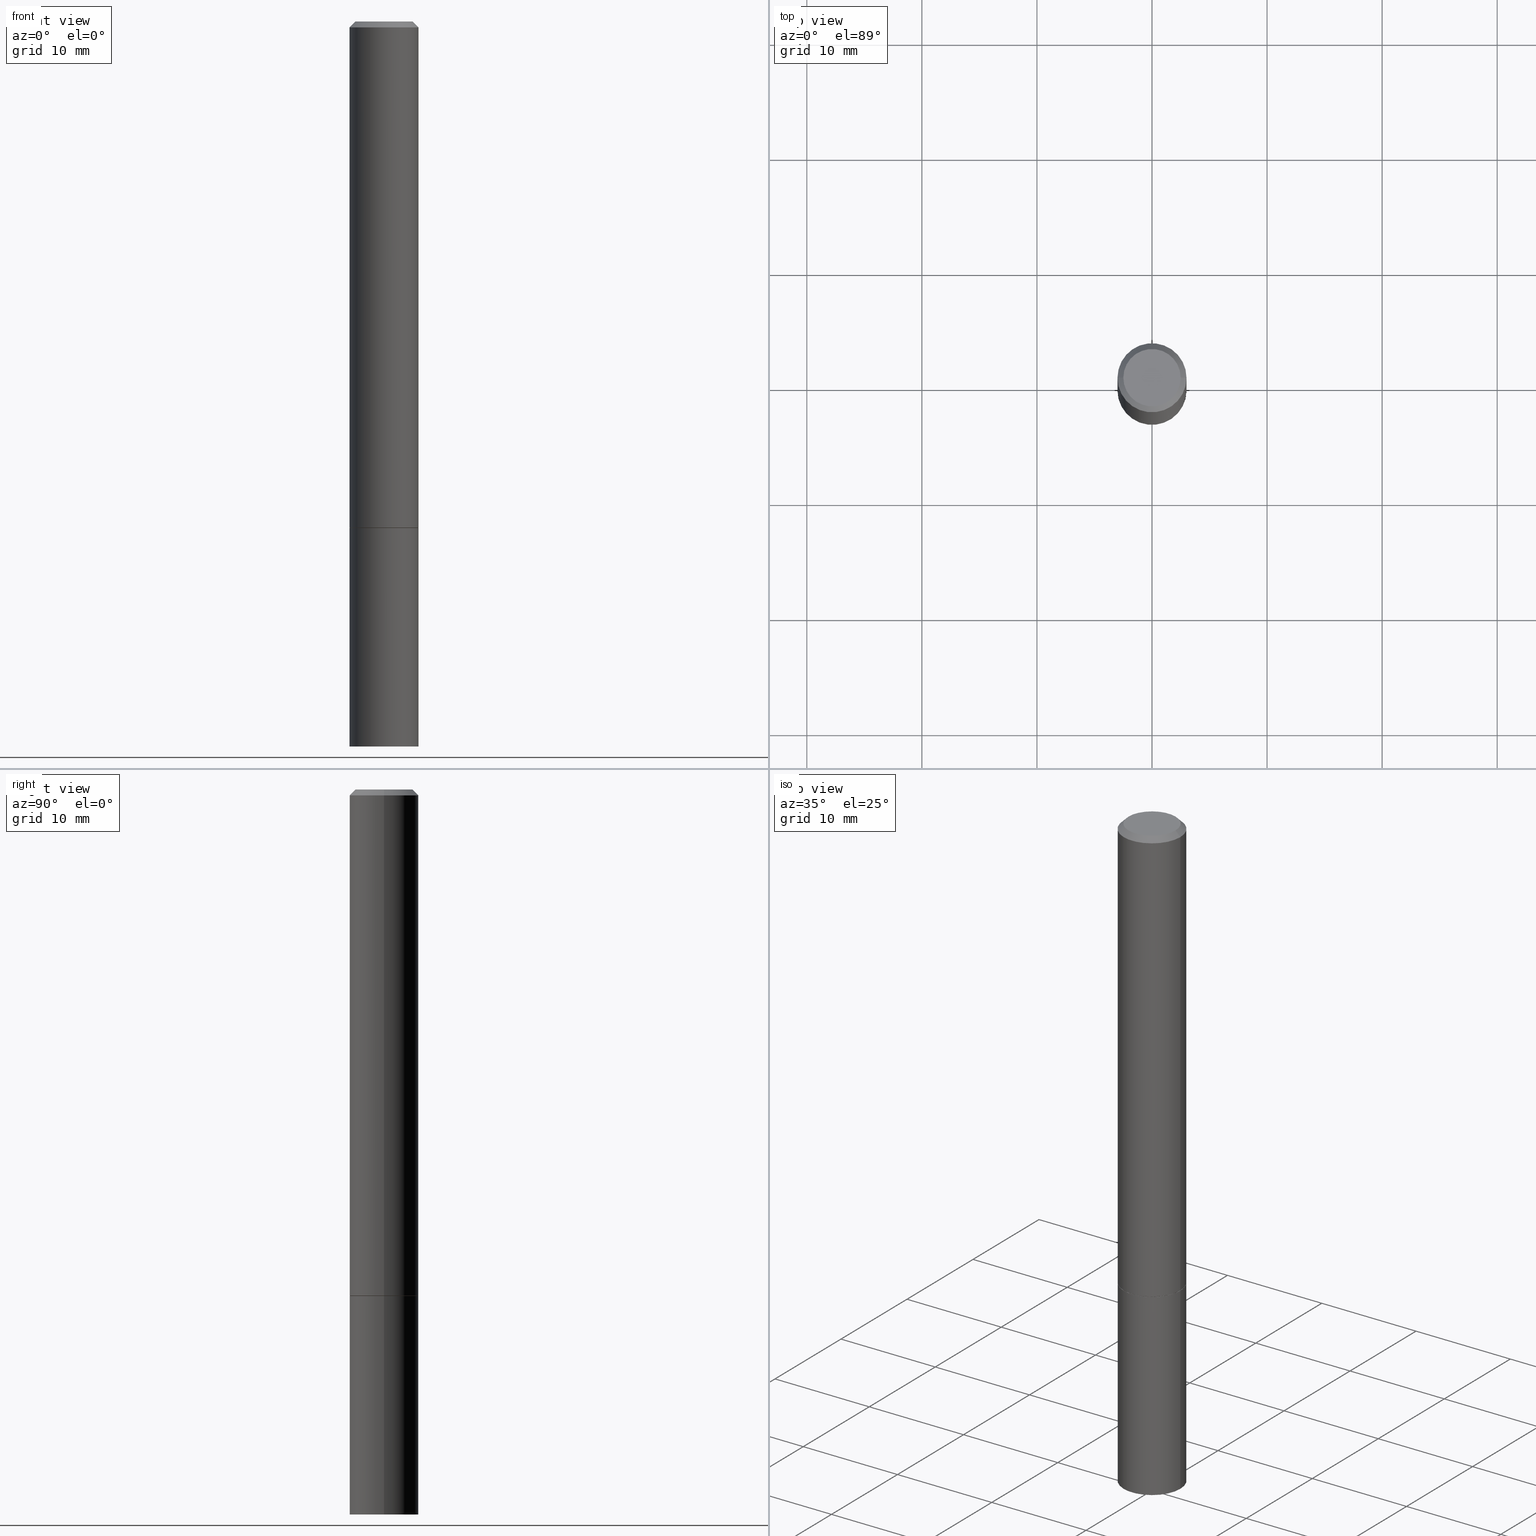
[diagram: canonical four-view strip — front | top / right | iso, engineering-drawing reading convention]
A machine part, canonical four-view strip (front | top / right | iso — engineering-drawing reading convention). The complete STEP part file that produces these views, byte-faithful:
ISO-10303-21;
HEADER;
FILE_DESCRIPTION (( 'STEP AP203' ),
    '1' );
FILE_NAME ('46620.STEP',
    '2024-02-28T10:54:08',
    ( '' ),
    ( '' ),
    'SwSTEP 2.0',
    'SolidWorks 2023',
    '' );
FILE_SCHEMA (( 'CONFIG_CONTROL_DESIGN' ));
ENDSEC;

DATA;
#1 = CC_DESIGN_PERSON_AND_ORGANIZATION_ASSIGNMENT ( #180, #151, ( #258 ) ) ;
#2 = DIRECTION ( 'NONE',  ( 1.000000000000000000, -6.982962677686266711E-15, 4.877161320636775200E-29 ) ) ;
#3 = CIRCLE ( 'NONE', #201, 0.1181000000000000383 ) ;
#4 = CIRCLE ( 'NONE', #222, 0.1181000000000000383 ) ;
#5 = FACE_OUTER_BOUND ( 'NONE', #329, .T. ) ;
#6 = CARTESIAN_POINT ( 'NONE',  ( 0.000000000000000000, 0.000000000000000000, 0.000000000000000000 ) ) ;
#7 = EDGE_CURVE ( 'NONE', #158, #191, #230, .T. ) ;
#8 = CARTESIAN_POINT ( 'NONE',  ( 6.850286386810215676E-16, 0.09809999999999984011, -3.659911380360642646E-16 ) ) ;
#9 = ORIENTED_EDGE ( 'NONE', *, *, #262, .F. ) ;
#10 = AXIS2_PLACEMENT_3D ( 'NONE', #283, #130, #218 ) ;
#11 = FACE_OUTER_BOUND ( 'NONE', #227, .T. ) ;
#12 = AXIS2_PLACEMENT_3D ( 'NONE', #164, #287, #60 ) ;
#13 = VERTEX_POINT ( 'NONE', #251 ) ;
#14 = CARTESIAN_POINT ( 'NONE',  ( -0.1171000000000000235, -5.216247579702905467E-15, -1.732300000000000173 ) ) ;
#15 = DIRECTION ( 'NONE',  ( -2.445468806185136597E-29, 3.491481338843145583E-15, 1.000000000000000000 ) ) ;
#16 =( CONVERSION_BASED_UNIT ( 'INCH', #296 ) LENGTH_UNIT ( ) NAMED_UNIT ( #81 ) );
#17 = AXIS2_PLACEMENT_3D ( 'NONE', #261, #196, #220 ) ;
#18 = CARTESIAN_POINT ( 'NONE',  ( -0.1171000000000000235, -5.210949125354683065E-15, -1.732300000000000173 ) ) ;
#19 = LINE ( 'NONE', #335, #278 ) ;
#20 = APPLICATION_CONTEXT ( 'configuration controlled 3d designs of mechanical parts and assemblies' ) ;
#21 = APPROVAL_DATE_TIME ( #77, #234 ) ;
#22 = FACE_OUTER_BOUND ( 'NONE', #240, .T. ) ;
#23 = AXIS2_PLACEMENT_3D ( 'NONE', #342, #344, #2 ) ;
#24 = PERSON_AND_ORGANIZATION_ROLE ( 'design_owner' ) ;
#25 = VERTEX_POINT ( 'NONE', #277 ) ;
#26 = DATE_AND_TIME ( #301, #273 ) ;
#27 = DIRECTION ( 'NONE',  ( -2.445468806185136877E-29, 3.491481338843145188E-15, 1.000000000000000000 ) ) ;
#28 = ORIENTED_EDGE ( 'NONE', *, *, #224, .T. ) ;
#29 = EDGE_CURVE ( 'NONE', #260, #25, #331, .T. ) ;
#30 = LOCAL_TIME ( 5, 54, 8.000000000000000000, #98 ) ;
#31 = FACE_OUTER_BOUND ( 'NONE', #317, .T. ) ;
#32 = DIRECTION ( 'NONE',  ( -2.445468806185136597E-29, 3.491481338843145583E-15, 1.000000000000000000 ) ) ;
#33 = FACE_OUTER_BOUND ( 'NONE', #65, .T. ) ;
#34 = AXIS2_PLACEMENT_3D ( 'NONE', #223, #316, #189 ) ;
#35 = LOCAL_TIME ( 5, 54, 8.000000000000000000, #242 ) ;
#36 = FACE_OUTER_BOUND ( 'NONE', #184, .T. ) ;
#37 = CARTESIAN_POINT ( 'NONE',  ( 4.890937612370292426E-31, -6.982962677686317493E-17, -0.02000000000000007674 ) ) ;
#38 = ORIENTED_EDGE ( 'NONE', *, *, #275, .F. ) ;
#39 = CARTESIAN_POINT ( 'NONE',  ( 4.233840144148327350E-29, -6.044801641939138860E-15, -1.731300000000000283 ) ) ;
#40 = VECTOR ( 'NONE', #292, 39.37007874015748143 ) ;
#41 = CC_DESIGN_APPROVAL ( #162, ( #266 ) ) ;
#42 =( NAMED_UNIT ( * ) SI_UNIT ( $, .STERADIAN. ) SOLID_ANGLE_UNIT ( ) );
#43 = EDGE_LOOP ( 'NONE', ( #350, #107 ) ) ;
#44 = DIRECTION ( 'NONE',  ( 1.000000000000000000, -6.982962677686262766E-15, 0.000000000000000000 ) ) ;
#45 = CARTESIAN_POINT ( 'NONE',  ( 0.09809999999999984011, -7.765346469475330681E-16, -4.695363739109941188E-17 ) ) ;
#46 = DATE_TIME_ROLE ( 'creation_date' ) ;
#47 = ORIENTED_EDGE ( 'NONE', *, *, #29, .F. ) ;
#48 = PERSON_AND_ORGANIZATION ( #228, #357 ) ;
#49 = ORIENTED_EDGE ( 'NONE', *, *, #146, .T. ) ;
#50 = DATE_AND_TIME ( #132, #30 ) ;
#51 = ORIENTED_EDGE ( 'NONE', *, *, #271, .F. ) ;
#52 = PERSON_AND_ORGANIZATION_ROLE ( 'creator' ) ;
#53 = ORIENTED_EDGE ( 'NONE', *, *, #7, .T. ) ;
#54 = ADVANCED_FACE ( 'NONE', ( #22 ), #337, .F. ) ;
#55 = DIRECTION ( 'NONE',  ( 2.438088387897960049E-29, -3.491481338843145188E-15, -1.000000000000000000 ) ) ;
#56 = VECTOR ( 'NONE', #27, 39.37007874015748143 ) ;
#57 = CONICAL_SURFACE ( 'NONE', #12, 0.1180999999999998301, 0.7853981633974473908 ) ;
#58 = CYLINDRICAL_SURFACE ( 'NONE', #166, 0.1180999999999999273 ) ;
#59 = DIRECTION ( 'NONE',  ( 2.438088387897960049E-29, -3.491481338843145188E-15, -1.000000000000000000 ) ) ;
#60 = DIRECTION ( 'NONE',  ( -1.000000000000000000, 6.982962677686266711E-15, 0.000000000000000000 ) ) ;
#61 = AXIS2_PLACEMENT_3D ( 'NONE', #341, #193, #136 ) ;
#62 = AXIS2_PLACEMENT_3D ( 'NONE', #205, #15, #44 ) ;
#63 = DIRECTION ( 'NONE',  ( -2.445468806185136877E-29, 3.491481338843145188E-15, 1.000000000000000000 ) ) ;
#64 = FACE_OUTER_BOUND ( 'NONE', #128, .T. ) ;
#65 = EDGE_LOOP ( 'NONE', ( #47, #284, #71, #123 ) ) ;
#66 = CARTESIAN_POINT ( 'NONE',  ( 0.000000000000000000, 0.000000000000000000, 0.000000000000000000 ) ) ;
#67 = AXIS2_PLACEMENT_3D ( 'NONE', #274, #102, #127 ) ;
#68 = DIRECTION ( 'NONE',  ( 1.000000000000000000, -6.982962677686262766E-15, 0.000000000000000000 ) ) ;
#69 = COORDINATED_UNIVERSAL_TIME_OFFSET ( 5, 0, .BEHIND. ) ;
#70 = APPROVAL_ROLE ( '' ) ;
#71 = ORIENTED_EDGE ( 'NONE', *, *, #178, .T. ) ;
#72 = EDGE_CURVE ( 'NONE', #265, #76, #96, .T. ) ;
#73 = APPROVAL_ROLE ( '' ) ;
#74 = ORIENTED_EDGE ( 'NONE', *, *, #224, .F. ) ;
#75 = PERSON_AND_ORGANIZATION ( #228, #357 ) ;
#76 = VERTEX_POINT ( 'NONE', #303 ) ;
#77 = DATE_AND_TIME ( #129, #231 ) ;
#78 = ORIENTED_EDGE ( 'NONE', *, *, #7, .F. ) ;
#79 = EDGE_CURVE ( 'NONE', #76, #200, #19, .T. ) ;
#80 = ORIENTED_EDGE ( 'NONE', *, *, #293, .T. ) ;
#81 = DIMENSIONAL_EXPONENTS ( 1.000000000000000000, 0.000000000000000000, 0.000000000000000000, 0.000000000000000000, 0.000000000000000000, 0.000000000000000000, 0.000000000000000000 ) ;
#82 = LINE ( 'NONE', #186, #92 ) ;
#83 = CARTESIAN_POINT ( 'NONE',  ( 0.1181000000000000383, -6.872981015512730918E-15, -1.732300000000000173 ) ) ;
#84 = CYLINDRICAL_SURFACE ( 'NONE', #17, 0.1180999999999999273 ) ;
#85 = CARTESIAN_POINT ( 'NONE',  ( 4.236285612954512953E-29, -6.048293123277982656E-15, -1.732300000000000173 ) ) ;
#86 = ORIENTED_EDGE ( 'NONE', *, *, #271, .T. ) ;
#87 = EDGE_CURVE ( 'NONE', #306, #302, #359, .T. ) ;
#88 = CARTESIAN_POINT ( 'NONE',  ( 6.065496279980994755E-29, -8.659921164732655335E-15, -2.480300000000000171 ) ) ;
#89 = EDGE_LOOP ( 'NONE', ( #208, #308, #51, #139 ) ) ;
#90 =( LENGTH_UNIT ( ) NAMED_UNIT ( * ) SI_UNIT ( $, .METRE. ) );
#91 = AXIS2_PLACEMENT_3D ( 'NONE', #85, #161, #219 ) ;
#92 = VECTOR ( 'NONE', #63, 39.37007874015748143 ) ;
#93 = EDGE_CURVE ( 'NONE', #365, #306, #241, .T. ) ;
#94 = DIRECTION ( 'NONE',  ( -2.445468806185136597E-29, 3.491481338843145583E-15, 1.000000000000000000 ) ) ;
#95 = DATE_AND_TIME ( #106, #352 ) ;
#96 = CIRCLE ( 'NONE', #310, 0.1171000000000000235 ) ;
#97 = DIRECTION ( 'NONE',  ( 0.7071067811865232589, -2.468850131082003836E-15, 0.7071067811865715536 ) ) ;
#98 = COORDINATED_UNIVERSAL_TIME_OFFSET ( 5, 0, .BEHIND. ) ;
#99 = ORIENTED_EDGE ( 'NONE', *, *, #314, .T. ) ;
#100 = PERSON_AND_ORGANIZATION_ROLE ( 'creator' ) ;
#101 = ORIENTED_EDGE ( 'NONE', *, *, #178, .F. ) ;
#102 = DIRECTION ( 'NONE',  ( 0.000000000000000000, 0.000000000000000000, 1.000000000000000000 ) ) ;
#103 = ORIENTED_EDGE ( 'NONE', *, *, #72, .F. ) ;
#104 = VECTOR ( 'NONE', #259, 39.37007874015748143 ) ;
#105 = VECTOR ( 'NONE', #147, 39.37007874015748143 ) ;
#106 = CALENDAR_DATE ( 2024, 28, 2 ) ;
#107 = ORIENTED_EDGE ( 'NONE', *, *, #113, .T. ) ;
#108 = CARTESIAN_POINT ( 'NONE',  ( 6.065496279980994755E-29, -8.659921164732655335E-15, -2.480300000000000171 ) ) ;
#109 = DIRECTION ( 'NONE',  ( -2.445468806185136597E-29, 3.491481338843145583E-15, 1.000000000000000000 ) ) ;
#110 = PRODUCT ( '46620', '46620', '', ( #207 ) ) ;
#111 = CARTESIAN_POINT ( 'NONE',  ( 4.236285612954512953E-29, -6.048293123277982656E-15, -1.732300000000000173 ) ) ;
#112 = DIRECTION ( 'NONE',  ( -2.445468806185136597E-29, 3.491481338843145583E-15, 1.000000000000000000 ) ) ;
#113 = EDGE_CURVE ( 'NONE', #306, #365, #119, .T. ) ;
#114 = PLANE ( 'NONE',  #214 ) ;
#115 = CC_DESIGN_PERSON_AND_ORGANIZATION_ASSIGNMENT ( #305, #334, ( #319 ) ) ;
#116 = DIRECTION ( 'NONE',  ( 1.000000000000000000, -6.982962677686266711E-15, 4.876176775795935793E-29 ) ) ;
#117 = DIRECTION ( 'NONE',  ( 1.000000000000000000, -6.982962677686262766E-15, 0.000000000000000000 ) ) ;
#118 = DIRECTION ( 'NONE',  ( -2.445468806185136597E-29, 3.491481338843145583E-15, 1.000000000000000000 ) ) ;
#119 = CIRCLE ( 'NONE', #23, 0.09809999999999984011 ) ;
#120 =( GEOMETRIC_REPRESENTATION_CONTEXT ( 3 ) GLOBAL_UNCERTAINTY_ASSIGNED_CONTEXT ( ( #313 ) ) GLOBAL_UNIT_ASSIGNED_CONTEXT ( ( #16, #197, #42 ) ) REPRESENTATION_CONTEXT ( 'NONE', 'WORKASPACE' ) );
#121 = DIRECTION ( 'NONE',  ( -0.7071067811865469066, 2.468850131082249961E-15, -0.7071067811865482389 ) ) ;
#122 = SECURITY_CLASSIFICATION_LEVEL ( 'unclassified' ) ;
#123 = ORIENTED_EDGE ( 'NONE', *, *, #168, .F. ) ;
#124 = CC_DESIGN_DATE_AND_TIME_ASSIGNMENT ( #95, #358, ( #319 ) ) ;
#125 = CIRCLE ( 'NONE', #91, 0.1181000000000000383 ) ;
#126 = ORIENTED_EDGE ( 'NONE', *, *, #29, .T. ) ;
#127 = DIRECTION ( 'NONE',  ( 1.000000000000000000, 0.000000000000000000, 0.000000000000000000 ) ) ;
#128 = EDGE_LOOP ( 'NONE', ( #133, #361 ) ) ;
#129 = CALENDAR_DATE ( 2024, 28, 2 ) ;
#130 = DIRECTION ( 'NONE',  ( -2.445468806185136597E-29, 3.491481338843145583E-15, 1.000000000000000000 ) ) ;
#131 = EDGE_CURVE ( 'NONE', #13, #159, #221, .T. ) ;
#132 = CALENDAR_DATE ( 2024, 28, 2 ) ;
#133 = ORIENTED_EDGE ( 'NONE', *, *, #131, .F. ) ;
#134 = DIRECTION ( 'NONE',  ( -1.000000000000000000, 6.982962677686266711E-15, 0.000000000000000000 ) ) ;
#135 = DIRECTION ( 'NONE',  ( -2.445468806185136597E-29, 3.491481338843145583E-15, 1.000000000000000000 ) ) ;
#136 = DIRECTION ( 'NONE',  ( 1.000000000000000000, -6.982962677686266711E-15, 0.000000000000000000 ) ) ;
#137 = AXIS2_PLACEMENT_3D ( 'NONE', #298, #238, #172 ) ;
#138 = CYLINDRICAL_SURFACE ( 'NONE', #340, 0.1181000000000000383 ) ;
#139 = ORIENTED_EDGE ( 'NONE', *, *, #79, .F. ) ;
#140 = DIRECTION ( 'NONE',  ( -2.445468806185136597E-29, 3.491481338843145583E-15, 1.000000000000000000 ) ) ;
#141 = ADVANCED_BREP_SHAPE_REPRESENTATION ( '46620', ( #272, #145, #67 ), #120 ) ;
#142 = CARTESIAN_POINT ( 'NONE',  ( 0.1181000000000000383, -8.246878922347483612E-16, 5.758764772215001842E-30 ) ) ;
#143 = AXIS2_PLACEMENT_3D ( 'NONE', #169, #294, #117 ) ;
#144 = DIRECTION ( 'NONE',  ( 2.438088387897960049E-29, -3.491481338843145188E-15, -1.000000000000000000 ) ) ;
#145 = MANIFOLD_SOLID_BREP ( 'Body-Move/Copy2[2]', #351 ) ;
#146 = EDGE_CURVE ( 'NONE', #159, #13, #3, .T. ) ;
#147 = DIRECTION ( 'NONE',  ( -2.445468806185136877E-29, 3.491481338843145188E-15, 1.000000000000000000 ) ) ;
#148 = CC_DESIGN_APPROVAL ( #234, ( #319 ) ) ;
#149 = APPLICATION_PROTOCOL_DEFINITION ( 'international standard', 'config_control_design', 1994, #20 ) ;
#150 = EDGE_CURVE ( 'NONE', #302, #25, #179, .T. ) ;
#151 = PERSON_AND_ORGANIZATION_ROLE ( 'design_supplier' ) ;
#152 = ORIENTED_EDGE ( 'NONE', *, *, #113, .F. ) ;
#153 = CALENDAR_DATE ( 2024, 28, 2 ) ;
#154 = AXIS2_PLACEMENT_3D ( 'NONE', #108, #135, #254 ) ;
#155 = EDGE_LOOP ( 'NONE', ( #346, #103 ) ) ;
#156 = PERSON_AND_ORGANIZATION ( #228, #357 ) ;
#157 = ADVANCED_FACE ( 'NONE', ( #33 ), #84, .T. ) ;
#158 = VERTEX_POINT ( 'NONE', #286 ) ;
#159 = VERTEX_POINT ( 'NONE', #321 ) ;
#160 = FACE_OUTER_BOUND ( 'NONE', #43, .T. ) ;
#161 = DIRECTION ( 'NONE',  ( -2.445468806185136597E-29, 3.491481338843145583E-15, 1.000000000000000000 ) ) ;
#162 = APPROVAL ( #330, 'UNSPECIFIED' ) ;
#163 = DIRECTION ( 'NONE',  ( 1.000000000000000000, -6.982962677686266711E-15, 4.877161320636775200E-29 ) ) ;
#164 = CARTESIAN_POINT ( 'NONE',  ( 4.890937612370292426E-31, -6.982962677686317493E-17, -0.02000000000000007674 ) ) ;
#165 = CIRCLE ( 'NONE', #61, 0.1180999999999998301 ) ;
#166 = AXIS2_PLACEMENT_3D ( 'NONE', #225, #290, #318 ) ;
#167 = DIRECTION ( 'NONE',  ( 1.000000000000000000, -6.982962677686266711E-15, 4.876176775795935793E-29 ) ) ;
#168 = EDGE_CURVE ( 'NONE', #25, #302, #165, .T. ) ;
#169 = CARTESIAN_POINT ( 'NONE',  ( 4.236285612954512953E-29, -6.048293123277982656E-15, -1.732300000000000173 ) ) ;
#170 = CC_DESIGN_PERSON_AND_ORGANIZATION_ASSIGNMENT ( #328, #24, ( #110 ) ) ;
#171 = PLANE ( 'NONE',  #137 ) ;
#172 = DIRECTION ( 'NONE',  ( 1.000000000000000000, -6.982962677686265922E-15, 4.876176775795935793E-29 ) ) ;
#173 = ADVANCED_FACE ( 'NONE', ( #160 ), #114, .F. ) ;
#174 = APPROVAL_PERSON_ORGANIZATION ( #48, #239, #73 ) ;
#175 = COORDINATED_UNIVERSAL_TIME_OFFSET ( 5, 0, .BEHIND. ) ;
#176 = ORIENTED_EDGE ( 'NONE', *, *, #314, .F. ) ;
#177 = DIRECTION ( 'NONE',  ( 1.000000000000000000, -6.982962677686262766E-15, 0.000000000000000000 ) ) ;
#178 = EDGE_CURVE ( 'NONE', #200, #302, #253, .T. ) ;
#179 = CIRCLE ( 'NONE', #34, 0.1180999999999998301 ) ;
#180 = PERSON_AND_ORGANIZATION ( #228, #357 ) ;
#181 = AXIS2_PLACEMENT_3D ( 'NONE', #66, #94, #116 ) ;
#182 = ORIENTED_EDGE ( 'NONE', *, *, #150, .T. ) ;
#183 = APPROVAL_DATE_TIME ( #26, #162 ) ;
#184 = EDGE_LOOP ( 'NONE', ( #74, #49, #80, #78 ) ) ;
#185 = CARTESIAN_POINT ( 'NONE',  ( 8.246878922347905653E-16, 0.1180999999999939876, -1.732300000000000839 ) ) ;
#186 = CARTESIAN_POINT ( 'NONE',  ( -0.1181000000000000383, 8.391509709326785915E-16, -5.809262341591045886E-30 ) ) ;
#187 = AXIS2_PLACEMENT_3D ( 'NONE', #353, #144, #232 ) ;
#188 = CC_DESIGN_DATE_AND_TIME_ASSIGNMENT ( #50, #46, ( #266 ) ) ;
#189 = DIRECTION ( 'NONE',  ( 1.000000000000000000, -6.982962677686266711E-15, 0.000000000000000000 ) ) ;
#190 = FACE_OUTER_BOUND ( 'NONE', #281, .T. ) ;
#191 = VERTEX_POINT ( 'NONE', #83 ) ;
#192 = ADVANCED_FACE ( 'NONE', ( #31 ), #300, .T. ) ;
#193 = DIRECTION ( 'NONE',  ( -2.445468806185136597E-29, 3.491481338843145583E-15, 1.000000000000000000 ) ) ;
#194 = CC_DESIGN_APPROVAL ( #239, ( #258 ) ) ;
#195 = EDGE_LOOP ( 'NONE', ( #86, #126, #291, #101 ) ) ;
#196 = DIRECTION ( 'NONE',  ( -2.445468806185136597E-29, 3.491481338843145583E-15, 1.000000000000000000 ) ) ;
#197 =( NAMED_UNIT ( * ) PLANE_ANGLE_UNIT ( ) SI_UNIT ( $, .RADIAN. ) );
#198 = ADVANCED_FACE ( 'NONE', ( #366 ), #58, .T. ) ;
#199 = DIRECTION ( 'NONE',  ( -0.7071067811865232589, 7.493145998870265808E-15, 0.7071067811865715536 ) ) ;
#200 = VERTEX_POINT ( 'NONE', #255 ) ;
#201 = AXIS2_PLACEMENT_3D ( 'NONE', #88, #109, #289 ) ;
#202 = CIRCLE ( 'NONE', #62, 0.1171000000000000235 ) ;
#203 = CARTESIAN_POINT ( 'NONE',  ( -0.1181000000000000383, -2.218164663425320121E-15, -1.731300000000000283 ) ) ;
#204 = EDGE_CURVE ( 'NONE', #191, #158, #125, .T. ) ;
#205 = CARTESIAN_POINT ( 'NONE',  ( 4.236285612954512953E-29, -6.048293123277982656E-15, -1.732300000000000173 ) ) ;
#206 = CIRCLE ( 'NONE', #264, 0.1181000000000000383 ) ;
#207 = MECHANICAL_CONTEXT ( 'NONE', #20, 'mechanical' ) ;
#208 = ORIENTED_EDGE ( 'NONE', *, *, #257, .T. ) ;
#209 = DATE_AND_TIME ( #153, #35 ) ;
#210 = CARTESIAN_POINT ( 'NONE',  ( 0.1180999999999998301, -8.800544403136798514E-16, -0.02000000000000007674 ) ) ;
#211 = ADVANCED_FACE ( 'NONE', ( #5 ), #311, .T. ) ;
#212 = APPROVAL_DATE_TIME ( #209, #239 ) ;
#213 = ORIENTED_EDGE ( 'NONE', *, *, #93, .F. ) ;
#214 = AXIS2_PLACEMENT_3D ( 'NONE', #8, #59, #229 ) ;
#215 = VECTOR ( 'NONE', #199, 39.37007874015748854 ) ;
#216 = ORIENTED_EDGE ( 'NONE', *, *, #204, .F. ) ;
#217 = ADVANCED_FACE ( 'NONE', ( #190 ), #57, .T. ) ;
#218 = DIRECTION ( 'NONE',  ( 1.000000000000000000, -6.982962677686270655E-15, 0.000000000000000000 ) ) ;
#219 = DIRECTION ( 'NONE',  ( 1.000000000000000000, -6.982962677686270655E-15, 0.000000000000000000 ) ) ;
#220 = DIRECTION ( 'NONE',  ( 1.000000000000000000, -6.982962677686266711E-15, 4.876176775795935793E-29 ) ) ;
#221 = CIRCLE ( 'NONE', #154, 0.1181000000000000383 ) ;
#222 = AXIS2_PLACEMENT_3D ( 'NONE', #263, #237, #355 ) ;
#223 = CARTESIAN_POINT ( 'NONE',  ( 4.890937612370292426E-31, -6.982962677686317493E-17, -0.02000000000000007674 ) ) ;
#224 = EDGE_CURVE ( 'NONE', #159, #158, #82, .T. ) ;
#225 = CARTESIAN_POINT ( 'NONE',  ( 0.000000000000000000, 0.000000000000000000, 0.000000000000000000 ) ) ;
#226 = PRODUCT_DEFINITION_SHAPE ( 'NONE', 'NONE',  #266 ) ;
#227 = EDGE_LOOP ( 'NONE', ( #332, #28, #216, #297 ) ) ;
#228 = PERSON ( 'UNSPECIFIED', 'UNSPECIFIED', 'UNSPECIFIED', ('UNSPECIFIED'), ('UNSPECIFIED'), ('UNSPECIFIED') ) ;
#229 = DIRECTION ( 'NONE',  ( -1.000000000000000000, 6.982962677686265922E-15, -4.876176775795935793E-29 ) ) ;
#230 = CIRCLE ( 'NONE', #10, 0.1181000000000000383 ) ;
#231 = LOCAL_TIME ( 5, 54, 8.000000000000000000, #276 ) ;
#232 = DIRECTION ( 'NONE',  ( -1.000000000000000000, 6.982962677686265922E-15, -4.876176775795935793E-29 ) ) ;
#233 = CARTESIAN_POINT ( 'NONE',  ( 0.1180999999999998301, -8.800544403136798514E-16, -0.02000000000000007674 ) ) ;
#234 = APPROVAL ( #282, 'UNSPECIFIED' ) ;
#235 = CARTESIAN_POINT ( 'NONE',  ( -0.1180999999999998301, 7.548582654578836825E-16, -0.02000000000000007674 ) ) ;
#236 = APPROVAL_PERSON_ORGANIZATION ( #156, #234, #362 ) ;
#237 = DIRECTION ( 'NONE',  ( -2.445468806185136597E-29, 3.491481338843145583E-15, 1.000000000000000000 ) ) ;
#238 = DIRECTION ( 'NONE',  ( -2.438088387897960049E-29, 3.491481338843145188E-15, 1.000000000000000000 ) ) ;
#239 = APPROVAL ( #250, 'UNSPECIFIED' ) ;
#240 = EDGE_LOOP ( 'NONE', ( #246, #53 ) ) ;
#241 = CIRCLE ( 'NONE', #339, 0.09809999999999984011 ) ;
#242 = COORDINATED_UNIVERSAL_TIME_OFFSET ( 5, 0, .BEHIND. ) ;
#243 = ADVANCED_FACE ( 'NONE', ( #36 ), #138, .T. ) ;
#244 = CARTESIAN_POINT ( 'NONE',  ( 4.236285612954512953E-29, -6.048293123277982656E-15, -1.732300000000000173 ) ) ;
#245 = PERSON_AND_ORGANIZATION ( #228, #357 ) ;
#246 = ORIENTED_EDGE ( 'NONE', *, *, #204, .T. ) ;
#247 = SHAPE_DEFINITION_REPRESENTATION ( #226, #141 ) ;
#248 = DIRECTION ( 'NONE',  ( -1.000000000000000000, 6.982962677686265922E-15, -4.876176775795935793E-29 ) ) ;
#249 = APPLICATION_CONTEXT ( 'configuration controlled 3d designs of mechanical parts and assemblies' ) ;
#250 = APPROVAL_STATUS ( 'not_yet_approved' ) ;
#251 = CARTESIAN_POINT ( 'NONE',  ( 0.1181000000000000383, -9.484609056967403598E-15, -2.480300000000000171 ) ) ;
#252 = CC_DESIGN_PERSON_AND_ORGANIZATION_ASSIGNMENT ( #75, #52, ( #258 ) ) ;
#253 = LINE ( 'NONE', #315, #104 ) ;
#254 = DIRECTION ( 'NONE',  ( 1.000000000000000000, -6.982962677686270655E-15, 0.000000000000000000 ) ) ;
#255 = CARTESIAN_POINT ( 'NONE',  ( 0.1181000000000000383, -6.869489534173886334E-15, -1.731300000000000283 ) ) ;
#256 = APPROVAL_PERSON_ORGANIZATION ( #360, #162, #70 ) ;
#257 = EDGE_CURVE ( 'NONE', #76, #265, #202, .T. ) ;
#258 = PRODUCT_DEFINITION_FORMATION_WITH_SPECIFIED_SOURCE ( 'ANY', '', #110, .NOT_KNOWN. ) ;
#259 = DIRECTION ( 'NONE',  ( -2.445468806185136877E-29, 3.491481338843145188E-15, 1.000000000000000000 ) ) ;
#260 = VERTEX_POINT ( 'NONE', #203 ) ;
#261 = CARTESIAN_POINT ( 'NONE',  ( 0.000000000000000000, 0.000000000000000000, 0.000000000000000000 ) ) ;
#262 = EDGE_CURVE ( 'NONE', #265, #260, #325, .T. ) ;
#263 = CARTESIAN_POINT ( 'NONE',  ( 4.233840144148327350E-29, -6.044801641939138860E-15, -1.731300000000000283 ) ) ;
#264 = AXIS2_PLACEMENT_3D ( 'NONE', #39, #118, #68 ) ;
#265 = VERTEX_POINT ( 'NONE', #18 ) ;
#266 = PRODUCT_DEFINITION ( 'UNKNOWN', '', #258, #345 ) ;
#267 = FACE_OUTER_BOUND ( 'NONE', #155, .T. ) ;
#268 = CARTESIAN_POINT ( 'NONE',  ( -0.09809999999999984011, 7.199434520694526251E-16, -4.695363739110943904E-17 ) ) ;
#269 = ORIENTED_EDGE ( 'NONE', *, *, #79, .T. ) ;
#270 = PLANE ( 'NONE',  #187 ) ;
#271 = EDGE_CURVE ( 'NONE', #200, #260, #206, .T. ) ;
#272 = MANIFOLD_SOLID_BREP ( 'Body-Move/Copy2[1]', #326 ) ;
#273 = LOCAL_TIME ( 5, 54, 8.000000000000000000, #175 ) ;
#274 = CARTESIAN_POINT ( 'NONE',  ( 0.000000000000000000, 0.000000000000000000, 0.000000000000000000 ) ) ;
#275 = EDGE_CURVE ( 'NONE', #260, #200, #4, .T. ) ;
#276 = COORDINATED_UNIVERSAL_TIME_OFFSET ( 5, 0, .BEHIND. ) ;
#277 = CARTESIAN_POINT ( 'NONE',  ( -0.1180999999999998301, 7.548582654578836825E-16, -0.02000000000000007674 ) ) ;
#278 = VECTOR ( 'NONE', #97, 39.37007874015748854 ) ;
#279 = PRODUCT_RELATED_PRODUCT_CATEGORY ( 'detail', '', ( #110 ) ) ;
#280 = APPLICATION_PROTOCOL_DEFINITION ( 'international standard', 'config_control_design', 1994, #249 ) ;
#281 = EDGE_LOOP ( 'NONE', ( #152, #343, #182, #176 ) ) ;
#282 = APPROVAL_STATUS ( 'not_yet_approved' ) ;
#283 = CARTESIAN_POINT ( 'NONE',  ( 4.236285612954512953E-29, -6.048293123277982656E-15, -1.732300000000000173 ) ) ;
#284 = ORIENTED_EDGE ( 'NONE', *, *, #275, .T. ) ;
#285 = AXIS2_PLACEMENT_3D ( 'NONE', #185, #55, #248 ) ;
#286 = CARTESIAN_POINT ( 'NONE',  ( -0.1181000000000000383, -6.514956173072640404E-15, -1.732300000000000173 ) ) ;
#287 = DIRECTION ( 'NONE',  ( 2.445468806185136597E-29, -3.491481338843145583E-15, -1.000000000000000000 ) ) ;
#288 = ADVANCED_FACE ( 'NONE', ( #349 ), #348, .T. ) ;
#289 = DIRECTION ( 'NONE',  ( 1.000000000000000000, -6.982962677686270655E-15, 0.000000000000000000 ) ) ;
#290 = DIRECTION ( 'NONE',  ( -2.445468806185136597E-29, 3.491481338843145583E-15, 1.000000000000000000 ) ) ;
#291 = ORIENTED_EDGE ( 'NONE', *, *, #150, .F. ) ;
#292 = DIRECTION ( 'NONE',  ( 0.7071067811865469066, -7.319954787623254468E-15, -0.7071067811865482389 ) ) ;
#293 = EDGE_CURVE ( 'NONE', #13, #191, #299, .T. ) ;
#294 = DIRECTION ( 'NONE',  ( -2.445468806185136597E-29, 3.491481338843145583E-15, 1.000000000000000000 ) ) ;
#295 = CYLINDRICAL_SURFACE ( 'NONE', #181, 0.1181000000000000383 ) ;
#296 = LENGTH_MEASURE_WITH_UNIT ( LENGTH_MEASURE( 0.02539999999999999897 ), #90 );
#297 = ORIENTED_EDGE ( 'NONE', *, *, #293, .F. ) ;
#298 = CARTESIAN_POINT ( 'NONE',  ( 4.236285612954512953E-29, -6.048293123277982656E-15, -1.732300000000000173 ) ) ;
#299 = LINE ( 'NONE', #142, #105 ) ;
#300 = CONICAL_SURFACE ( 'NONE', #327, 0.1180999999999998301, 0.7853981633974473908 ) ;
#301 = CALENDAR_DATE ( 2024, 28, 2 ) ;
#302 = VERTEX_POINT ( 'NONE', #233 ) ;
#303 = CARTESIAN_POINT ( 'NONE',  ( 0.1171000000000000235, -6.865998052835044115E-15, -1.732300000000000173 ) ) ;
#304 = AXIS2_PLACEMENT_3D ( 'NONE', #111, #140, #338 ) ;
#305 = PERSON_AND_ORGANIZATION ( #228, #357 ) ;
#306 = VERTEX_POINT ( 'NONE', #45 ) ;
#307 = ORIENTED_EDGE ( 'NONE', *, *, #168, .T. ) ;
#308 = ORIENTED_EDGE ( 'NONE', *, *, #262, .T. ) ;
#309 = CC_DESIGN_PERSON_AND_ORGANIZATION_ASSIGNMENT ( #245, #100, ( #266 ) ) ;
#310 = AXIS2_PLACEMENT_3D ( 'NONE', #244, #363, #177 ) ;
#311 = CONICAL_SURFACE ( 'NONE', #304, 0.1171000000000000235, 0.7853981633974141952 ) ;
#312 = DIRECTION ( 'NONE',  ( 2.445468806185136597E-29, -3.491481338843145583E-15, -1.000000000000000000 ) ) ;
#313 = UNCERTAINTY_MEASURE_WITH_UNIT (LENGTH_MEASURE( 1.000000000000000082E-05 ), #16, 'distance_accuracy_value', 'NONE');
#314 = EDGE_CURVE ( 'NONE', #365, #25, #323, .T. ) ;
#315 = CARTESIAN_POINT ( 'NONE',  ( 0.1180999999999999273, -8.246878922347475723E-16, 5.758764772214996937E-30 ) ) ;
#316 = DIRECTION ( 'NONE',  ( -2.445468806185136597E-29, 3.491481338843145583E-15, 1.000000000000000000 ) ) ;
#317 = EDGE_LOOP ( 'NONE', ( #322, #213, #99, #307 ) ) ;
#318 = DIRECTION ( 'NONE',  ( 1.000000000000000000, -6.982962677686266711E-15, 4.876176775795935793E-29 ) ) ;
#319 = SECURITY_CLASSIFICATION ( '', '', #122 ) ;
#320 = ORIENTED_EDGE ( 'NONE', *, *, #72, .T. ) ;
#321 = CARTESIAN_POINT ( 'NONE',  ( -0.1181000000000000383, -6.514956173072640404E-15, -2.480300000000000171 ) ) ;
#322 = ORIENTED_EDGE ( 'NONE', *, *, #87, .F. ) ;
#323 = LINE ( 'NONE', #235, #324 ) ;
#324 = VECTOR ( 'NONE', #121, 39.37007874015748143 ) ;
#325 = LINE ( 'NONE', #14, #215 ) ;
#326 = CLOSED_SHELL ( 'NONE', ( #336, #354, #54, #243 ) ) ;
#327 = AXIS2_PLACEMENT_3D ( 'NONE', #37, #312, #134 ) ;
#328 = PERSON_AND_ORGANIZATION ( #228, #357 ) ;
#329 = EDGE_LOOP ( 'NONE', ( #9, #320, #269, #38 ) ) ;
#330 = APPROVAL_STATUS ( 'not_yet_approved' ) ;
#331 = LINE ( 'NONE', #356, #56 ) ;
#332 = ORIENTED_EDGE ( 'NONE', *, *, #131, .T. ) ;
#333 = ADVANCED_FACE ( 'NONE', ( #267 ), #171, .F. ) ;
#334 = PERSON_AND_ORGANIZATION_ROLE ( 'classification_officer' ) ;
#335 = CARTESIAN_POINT ( 'NONE',  ( 0.1171000000000000235, -6.865998052835044115E-15, -1.732300000000000173 ) ) ;
#336 = ADVANCED_FACE ( 'NONE', ( #11 ), #295, .T. ) ;
#337 = PLANE ( 'NONE',  #285 ) ;
#338 = DIRECTION ( 'NONE',  ( 1.000000000000000000, -6.982962677686262766E-15, 0.000000000000000000 ) ) ;
#339 = AXIS2_PLACEMENT_3D ( 'NONE', #347, #32, #163 ) ;
#340 = AXIS2_PLACEMENT_3D ( 'NONE', #6, #112, #167 ) ;
#341 = CARTESIAN_POINT ( 'NONE',  ( 4.890937612370292426E-31, -6.982962677686317493E-17, -0.02000000000000007674 ) ) ;
#342 = CARTESIAN_POINT ( 'NONE',  ( 1.148236555768741665E-45, -1.639377487418492057E-31, -4.695363739110452099E-17 ) ) ;
#343 = ORIENTED_EDGE ( 'NONE', *, *, #87, .T. ) ;
#344 = DIRECTION ( 'NONE',  ( -2.445468806185136597E-29, 3.491481338843145583E-15, 1.000000000000000000 ) ) ;
#345 = DESIGN_CONTEXT ( 'detailed design', #249, 'design' ) ;
#346 = ORIENTED_EDGE ( 'NONE', *, *, #257, .F. ) ;
#347 = CARTESIAN_POINT ( 'NONE',  ( 1.148236555768741665E-45, -1.639377487418492057E-31, -4.695363739110452099E-17 ) ) ;
#348 = CONICAL_SURFACE ( 'NONE', #143, 0.1171000000000000235, 0.7853981633974141952 ) ;
#349 = FACE_OUTER_BOUND ( 'NONE', #89, .T. ) ;
#350 = ORIENTED_EDGE ( 'NONE', *, *, #93, .T. ) ;
#351 = CLOSED_SHELL ( 'NONE', ( #288, #198, #217, #192, #157, #211, #333, #173 ) ) ;
#352 = LOCAL_TIME ( 5, 54, 8.000000000000000000, #69 ) ;
#353 = CARTESIAN_POINT ( 'NONE',  ( 8.246878922348089063E-16, 0.1180999999999913785, -2.480300000000001059 ) ) ;
#354 = ADVANCED_FACE ( 'NONE', ( #64 ), #270, .T. ) ;
#355 = DIRECTION ( 'NONE',  ( 1.000000000000000000, -6.982962677686262766E-15, 0.000000000000000000 ) ) ;
#356 = CARTESIAN_POINT ( 'NONE',  ( -0.1180999999999999273, 8.391509709326778027E-16, -5.809262341591040281E-30 ) ) ;
#357 = ORGANIZATION ( 'UNSPECIFIED', 'UNSPECIFIED', '' ) ;
#358 = DATE_TIME_ROLE ( 'classification_date' ) ;
#359 = LINE ( 'NONE', #210, #40 ) ;
#360 = PERSON_AND_ORGANIZATION ( #228, #357 ) ;
#361 = ORIENTED_EDGE ( 'NONE', *, *, #146, .F. ) ;
#362 = APPROVAL_ROLE ( '' ) ;
#363 = DIRECTION ( 'NONE',  ( -2.445468806185136597E-29, 3.491481338843145583E-15, 1.000000000000000000 ) ) ;
#364 = CC_DESIGN_SECURITY_CLASSIFICATION ( #319, ( #258 ) ) ;
#365 = VERTEX_POINT ( 'NONE', #268 ) ;
#366 = FACE_OUTER_BOUND ( 'NONE', #195, .T. ) ;
ENDSEC;
END-ISO-10303-21;
